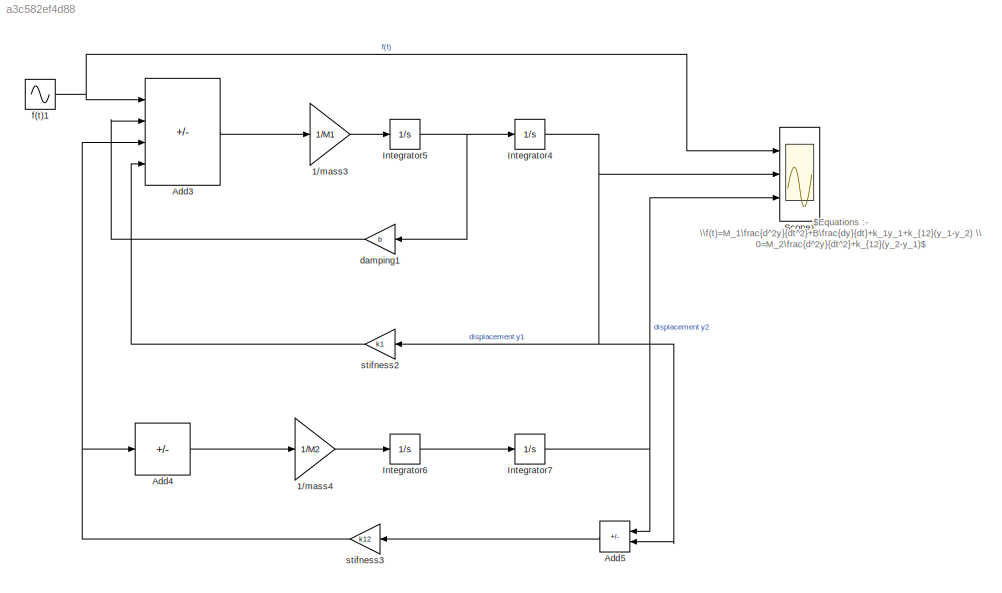
MODEL slx_a3c582ef4d88
KIND model
CONFIG AbsTol = auto
CONFIG EnableMultiTasking = off
CONFIG FixedStep = auto
CONFIG MaxStep = auto
CONFIG MinStep = auto
CONFIG RelTol = 1e-3
CONFIG SampleTimeConstraint = Unconstrained
CONFIG SolverName = VariableStepAuto
CONFIG StartTime = 0.0
CONFIG StopTime = 10.0
BLOCK [Gain] 1//mass3
  Gain = 1/M1
BLOCK [Gain] 1//mass4
  Gain = 1/M2
BLOCK [Sum] Add3
  IconShape = rectangular
  Inputs = +-+-
  Ports = [4, 1]
BLOCK [Sum] Add4
  IconShape = rectangular
  Inputs = -
  Ports = [1, 1]
BLOCK [Sum] Add5
  IconShape = rectangular
  Inputs = +-
  NameLocation = top
  Ports = [2, 1]
BLOCK [Integrator] Integrator4
  Ports = [1, 1]
BLOCK [Integrator] Integrator5
  Ports = [1, 1]
BLOCK [Integrator] Integrator6
  Ports = [1, 1]
BLOCK [Integrator] Integrator7
  Ports = [1, 1]
BLOCK [Scope] Scope1
  Floating = off
  NumInputPorts = 3
  Ports = [3]
  ScopeSpecificationString = Simulink.scopes.TimeScopeBlockCfg('CurrentConfiguration', extmgr.ConfigurationSet(extmgr.Configuration('Core','General UI',true),extmgr.Configuration('Core','Source UI',true),extmgr.Configuration('Sources','WiredSimulink',true,'DataLoggingVariableName','ScopeData1'),extmgr.Configuration('Visuals','Time Domain',true,'SerializedDisplays',{struct('MinYLimReal','-2.49998','MaxYLimReal','2.49999','YLab...<+2803ch>
BLOCK [Gain] damping1
  Gain = b
  NameLocation = top
BLOCK [Sin] f(t)1
  Amplitude = 2
  Frequency = 10
  Ports = [0, 1]
  SampleTime = 0
BLOCK [Gain] stifness2
  Gain = k1
  NameLocation = top
BLOCK [Gain] stifness3
  Gain = k12
  NameLocation = top
ANNOTATION (root): $Equations :- \\f(t)=M_1\frac{d^2y}{dt^2}+B\frac{dy}{dt}+k_1y_1+k_{12}(y_1-y_2) \\ 0=M_2\frac{d^2y}{dt^2}+k_{12}(y_2-y_1)$
LINE 1//mass3:1 -> Integrator5:1
LINE 1//mass4:1 -> Integrator6:1
LINE Add3:1 -> 1//mass3:1
LINE Add4:1 -> 1//mass4:1
LINE Add5:1 -> stifness3:1
NET Integrator4:1 -> Add5:2, Scope1:2, stifness2:1
NET Integrator5:1 -> Integrator4:1, damping1:1
LINE Integrator6:1 -> Integrator7:1
NET Integrator7:1 -> Add5:1, Scope1:3
LINE damping1:1 -> Add3:2
NET f(t)1:1 -> Add3:1, Scope1:1
LINE stifness2:1 -> Add3:4
NET stifness3:1 -> Add3:3, Add4:1
note: NET lines group one-source signal fan-out (src -> all destinations, sorted); 1:1 wires keep LINE
